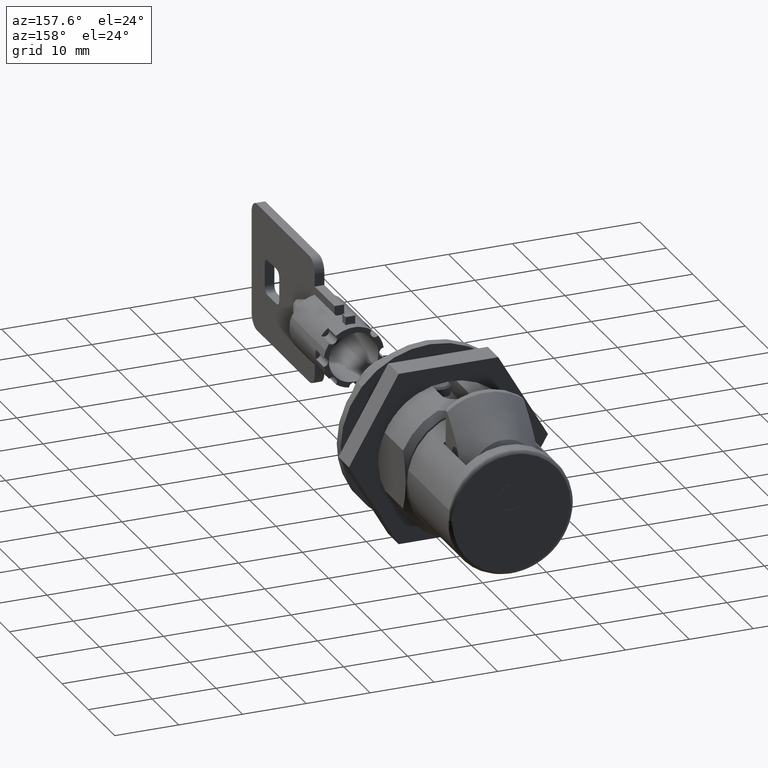
[diagram: clean part render]
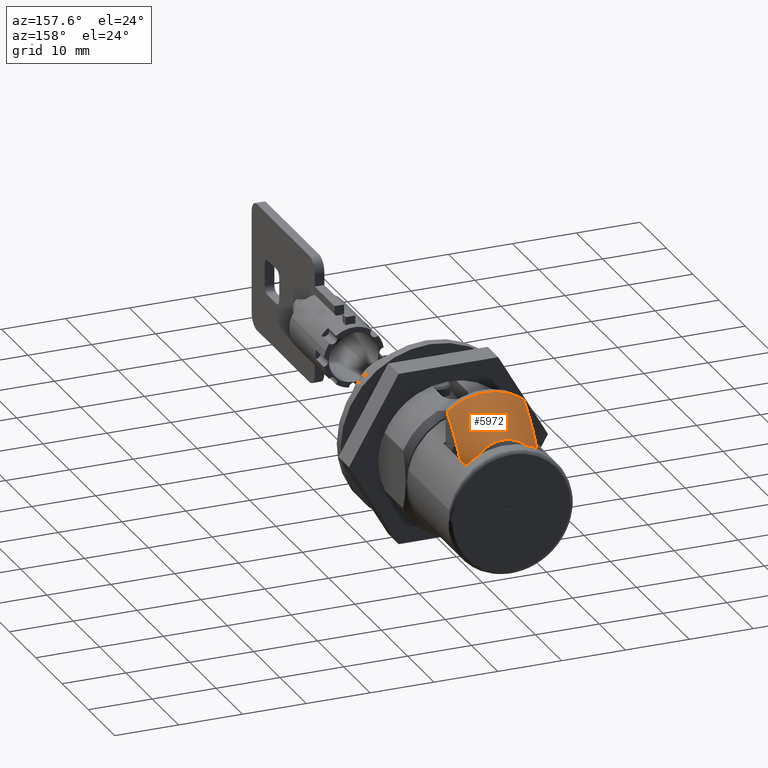
[diagram: same view with one face highlighted and labeled with its STEP entity id]
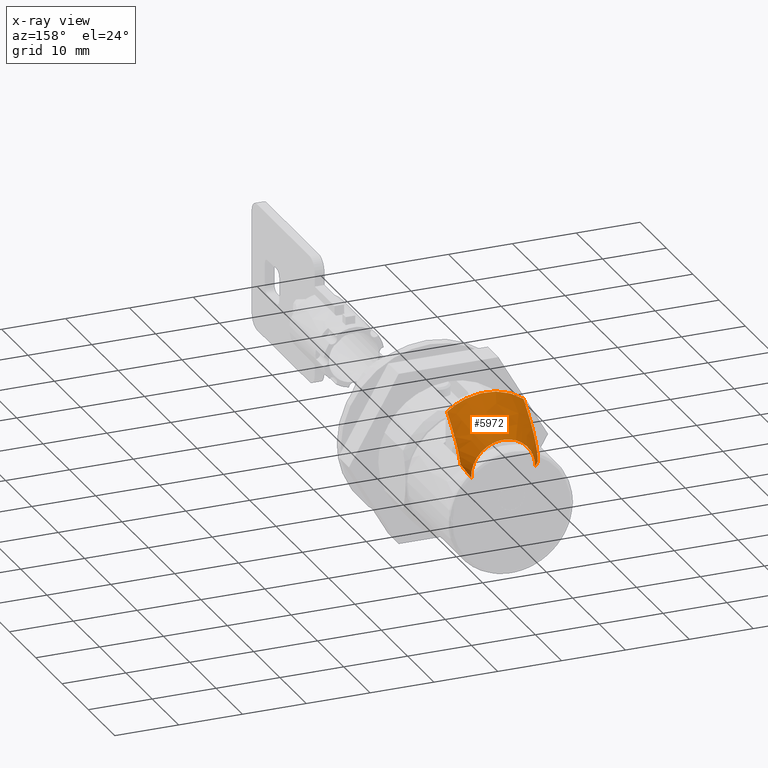
[diagram: x-ray of the same camera — body ghosted, the highlighted face saturated]
A machine part, auxiliary view. The second image highlights one B-rep face of the part: STEP entity #5972.
The next image is the same camera in x-ray: the body ghosted, the highlighted face saturated — about 0% of this face is hidden behind the body in this view.
In plain terms, the highlighted face is a freeform B-spline surface patch.
Its self-contained STEP definition (entity closure, byte-faithful):
#4879=CARTESIAN_POINT('',(25.300000000000001,6.000480898583165,2.181160377379437));
#4880=VERTEX_POINT('',#4879);
#5105=CARTESIAN_POINT('',(25.300000000000001,-6.000480898583126,2.177399804188660));
#5106=VERTEX_POINT('',#5105);
#5373=CARTESIAN_POINT('',(27.773523902498230,5.007127503225570,5.190888317715695));
#5374=VERTEX_POINT('',#5373);
#5421=CARTESIAN_POINT('',(27.773523902498230,-5.007127503225490,5.098301768484705));
#5422=VERTEX_POINT('',#5421);
#5460=CARTESIAN_POINT('',(27.773523902498230,-0.047265493933687,10.256868599436110));
#5461=VERTEX_POINT('',#5460);
#5462=CARTESIAN_POINT('',(27.773523902498230,-0.047265493933687,10.256868599436110));
#5463=CARTESIAN_POINT('',(27.773523902498230,0.492467278929616,10.262163012733270));
#5464=CARTESIAN_POINT('',(27.773523902498230,1.365390797100017,10.127578265603560));
#5465=CARTESIAN_POINT('',(27.773523902498230,2.435149820044926,9.658005076790932));
#5466=CARTESIAN_POINT('',(27.773523902498219,3.363913046777682,9.022760826718910));
#5467=CARTESIAN_POINT('',(27.773523902498219,4.264540634477991,8.025924235529885));
#5468=CARTESIAN_POINT('',(27.773523902498219,4.886785046772579,6.645459875546125));
#5469=CARTESIAN_POINT('',(27.773523902498230,5.012524238329910,5.647550478584230));
#5470=CARTESIAN_POINT('',(27.773523902498230,5.007127503225570,5.190888317715695));
#5471=B_SPLINE_CURVE_WITH_KNOTS('',3,(#5462,#5463,#5464,#5465,#5466,#5467,#5468,#5469,#5470),.UNSPECIFIED.,.F.,.U.,(4,1,1,1,1,1,4),(0.000000460048009,1.619187593599230,2.615649680436144,3.487602412177723,4.982125041826437,6.601396620165167,7.971494339598017),.UNSPECIFIED.);
#5472=EDGE_CURVE('',#5461,#5374,#5471,.T.);
#5474=CARTESIAN_POINT('',(27.773523902498230,-5.007127503225490,5.098301768484705));
#5475=CARTESIAN_POINT('',(27.773523902498251,-5.023634703095767,5.637807811670943));
#5476=CARTESIAN_POINT('',(27.773523902498201,-4.907202655249370,6.513327934912175));
#5477=CARTESIAN_POINT('',(27.773523902498280,-4.380286240516111,7.785439008710307));
#5478=CARTESIAN_POINT('',(27.773523902498191,-3.702172615218290,8.693578453921408));
#5479=CARTESIAN_POINT('',(27.773523902498258,-2.740327367769319,9.492426485416260));
#5480=CARTESIAN_POINT('',(27.773523902498209,-1.581675280607286,10.080047474910600));
#5481=CARTESIAN_POINT('',(27.773523902498201,-0.586996419601160,10.252158184910151));
#5482=CARTESIAN_POINT('',(27.773523902498230,-0.047265493933687,10.256868599436110));
#5483=B_SPLINE_CURVE_WITH_KNOTS('',3,(#5474,#5475,#5476,#5477,#5478,#5479,#5480,#5481,#5482),.UNSPECIFIED.,.F.,.U.,(4,1,1,1,1,1,4),(0.000000459925213,1.619187609810829,2.615649706497655,4.110241601733870,4.982125091844132,6.352307269785422,7.971494419672093),.UNSPECIFIED.);
#5484=EDGE_CURVE('',#5422,#5461,#5483,.T.);
#5582=CARTESIAN_POINT('',(26.355555025280601,-5.999999999999920,5.094271665714160));
#5583=VERTEX_POINT('',#5582);
#5584=CARTESIAN_POINT('',(27.773523902498230,-5.007127503225490,5.098301768484705));
#5585=CARTESIAN_POINT('',(26.355555025280601,-5.999999999999920,5.094271665714160));
#5586=QUASI_UNIFORM_CURVE('',1,(#5584,#5585),.UNSPECIFIED.,.F.,.U.);
#5587=EDGE_CURVE('',#5422,#5583,#5586,.T.);
#5626=CARTESIAN_POINT('',(26.355555025280601,-5.999999999999920,5.094271665714160));
#5627=CARTESIAN_POINT('',(26.348246871673979,-6.000029275688912,4.896102090904257));
#5628=CARTESIAN_POINT('',(26.326946704769480,-6.000059088634249,4.699308150149262));
#5629=CARTESIAN_POINT('',(26.275282439914928,-6.000104565018334,4.406055435409590));
#5630=CARTESIAN_POINT('',(26.254780271486720,-6.000119849785038,4.308627079291976));
#5631=CARTESIAN_POINT('',(26.207476116178320,-6.000150661214835,4.114389737880506));
#5632=CARTESIAN_POINT('',(26.180585604070391,-6.000166226821057,4.017345646411983));
#5633=CARTESIAN_POINT('',(26.092129506678180,-6.000212666676839,3.730791633188056));
#5634=CARTESIAN_POINT('',(26.022609984221521,-6.000243455681586,3.544743356873210));
#5635=CARTESIAN_POINT('',(25.866561479309361,-6.000304758123818,3.180689302912199));
#5636=CARTESIAN_POINT('',(25.780025227494729,-6.000335271443530,3.002686962401079));
#5637=CARTESIAN_POINT('',(25.593129091306579,-6.000396074128713,2.653218441048735));
#5638=CARTESIAN_POINT('',(25.492763275369899,-6.000426363398094,2.481755064799117));
#5639=CARTESIAN_POINT('',(25.358229051178640,-6.000464679653232,2.267590215418237));
#5640=CARTESIAN_POINT('',(25.329289519652392,-6.000472797659609,2.222373126018161));
#5641=CARTESIAN_POINT('',(25.300000000000001,-6.000480898583126,2.177399804188660));
#5642=B_SPLINE_CURVE_WITH_KNOTS('',3,(#5626,#5627,#5628,#5629,#5630,#5631,#5632,#5633,#5634,#5635,#5636,#5637,#5638,#5639,#5640,#5641),.UNSPECIFIED.,.F.,.U.,(4,2,2,2,2,2,2,4),(0.0,0.062500000000000,0.093750000000000,0.125000000000000,0.187499999999999,0.249999999999998,0.312499999999998,0.329303359131450),.UNSPECIFIED.);
#5643=EDGE_CURVE('',#5583,#5106,#5642,.T.);
#5656=CARTESIAN_POINT('',(26.355555025280601,6.0,5.221393301013930));
#5657=VERTEX_POINT('',#5656);
#5658=CARTESIAN_POINT('',(25.300000000000001,6.000480898583165,2.181160377379437));
#5659=CARTESIAN_POINT('',(25.349147846869450,6.000467824200841,2.256719787420463));
#5660=CARTESIAN_POINT('',(25.397358227428050,6.000454686380714,2.333053892403563));
#5661=CARTESIAN_POINT('',(25.548743814191901,6.000412300484989,2.580768059818612));
#5662=CARTESIAN_POINT('',(25.647094073151969,6.000382990452373,2.754261369679019));
#5663=CARTESIAN_POINT('',(25.828989409270068,6.000324212009294,3.107507613710411));
#5664=CARTESIAN_POINT('',(25.912539038693069,6.000294743647531,3.287258623185783));
#5665=CARTESIAN_POINT('',(26.061591100504319,6.000235613864837,3.654390989052065));
#5666=CARTESIAN_POINT('',(26.127098263006140,6.000205952494508,3.841770345553037));
#5667=CARTESIAN_POINT('',(26.208801808690779,6.000161283319044,4.129839756316640));
#5668=CARTESIAN_POINT('',(26.233270176687650,6.000146364003140,4.227032419062478));
#5669=CARTESIAN_POINT('',(26.276085202385630,6.000116459884580,4.424006000956688));
#5670=CARTESIAN_POINT('',(26.294413026846161,6.000101459282140,4.523905376333588));
#5671=CARTESIAN_POINT('',(26.338664202673659,6.000057133847742,4.822536634782549));
#5672=CARTESIAN_POINT('',(26.354236186952299,6.000028234085893,5.021849608651071));
#5673=CARTESIAN_POINT('',(26.355555025280601,6.0,5.221393301013930));
#5674=B_SPLINE_CURVE_WITH_KNOTS('',3,(#5658,#5659,#5660,#5661,#5662,#5663,#5664,#5665,#5666,#5667,#5668,#5669,#5670,#5671,#5672,#5673),.UNSPECIFIED.,.F.,.U.,(4,2,2,2,2,2,2,4),(0.659415659930157,0.687500000000000,0.750000000000000,0.812500000000000,0.875000000000000,0.906250000000000,0.937500000000000,1.0),.UNSPECIFIED.);
#5675=EDGE_CURVE('',#4880,#5657,#5674,.T.);
#5712=CARTESIAN_POINT('',(26.355555025280601,6.0,5.221393301013930));
#5713=CARTESIAN_POINT('',(26.810000450228554,5.681793887746570,5.202974700395282));
#5714=CARTESIAN_POINT('',(27.773523902498230,5.007127503225570,5.190888317715695));
#5722=(BOUNDED_CURVE()B_SPLINE_CURVE(2,(#5712,#5713,#5714),.UNSPECIFIED.,.F.,.U.)CURVE()GEOMETRIC_REPRESENTATION_ITEM()QUASI_UNIFORM_CURVE()RATIONAL_B_SPLINE_CURVE((1.0,0.964696770100938,1.0))REPRESENTATION_ITEM(''));
#5723=EDGE_CURVE('',#5657,#5374,#5722,.T.);
#5740=CARTESIAN_POINT('',(21.000000000002551,6.000961797166331,12.932334897698800));
#5741=VERTEX_POINT('',#5740);
#5747=CARTESIAN_POINT('',(25.300000000000001,6.000480898583165,2.181160377379437));
#5748=CARTESIAN_POINT('',(25.351724862539282,6.000483169743796,2.260747884079770));
#5749=CARTESIAN_POINT('',(25.402405318353949,6.000485490092435,2.341193228937217));
#5750=CARTESIAN_POINT('',(25.504387315934672,6.000490381336877,2.508829785419037));
#5751=CARTESIAN_POINT('',(25.555532675648848,6.000492959384101,2.596143983254143));
#5752=CARTESIAN_POINT('',(25.654214812494260,6.000498219086868,2.772015849408477));
#5753=CARTESIAN_POINT('',(25.701834653640070,6.000500904591685,2.860706565831507));
#5754=CARTESIAN_POINT('',(25.838987081849361,6.000509145636935,3.129281359864136));
#5755=CARTESIAN_POINT('',(25.922837974334119,6.000514884886867,3.311656943680860));
#5756=CARTESIAN_POINT('',(26.071920135229028,6.000526965425770,3.684573088912701));
#5757=CARTESIAN_POINT('',(26.137157348347490,6.000533306522522,3.875111043486234));
#5758=CARTESIAN_POINT('',(26.244686997153408,6.000546730602733,4.266248573263950));
#5759=CARTESIAN_POINT('',(26.285973525987782,6.000553701044587,4.463527253557956));
#5760=CARTESIAN_POINT('',(26.341053307472521,6.000568156336339,4.860427670650506));
#5761=CARTESIAN_POINT('',(26.354897470431791,6.000575648641760,5.060263115271593));
#5762=CARTESIAN_POINT('',(26.353914654774741,6.000587307383984,5.362216061807172));
#5763=CARTESIAN_POINT('',(26.349958934371990,6.000591267966010,5.463343547005535));
#5764=CARTESIAN_POINT('',(26.334713900664759,6.000599313283415,5.665884808761609));
#5765=CARTESIAN_POINT('',(26.301098233970599,6.000611448845735,5.967150256553270));
#5766=CARTESIAN_POINT('',(26.237151808695121,6.000623775133677,6.261229737725369));
#5767=CARTESIAN_POINT('',(26.155543518405761,6.000636212482803,6.551124767918815));
#5768=CARTESIAN_POINT('',(26.125396795916249,6.000640376778025,6.647058961549572));
#5769=CARTESIAN_POINT('',(26.059629432788508,6.000648739789511,6.837630467528367));
#5770=CARTESIAN_POINT('',(26.023931257900362,6.000652946965296,6.932456147455440));
#5771=CARTESIAN_POINT('',(25.909768144541001,6.000665557018179,7.213808242783014));
#5772=CARTESIAN_POINT('',(25.824818243409499,6.000673894294759,7.396039509182040));
#5773=CARTESIAN_POINT('',(25.641025176442820,6.000690459750842,7.752115637390095));
#5774=CARTESIAN_POINT('',(25.542170385444280,6.000698687839057,7.925953481890710));
#5775=CARTESIAN_POINT('',(25.333355679615341,6.000715056812325,8.266925774428795));
#5776=CARTESIAN_POINT('',(25.223387971623190,6.000723197636184,8.434055518272631));
#5777=CARTESIAN_POINT('',(24.994453602486050,6.000739408619481,8.762882959307795));
#5778=CARTESIAN_POINT('',(24.875481628411489,6.000747478737197,8.924577449450389));
#5779=CARTESIAN_POINT('',(24.691486489218189,6.000759540432996,9.163776772591341));
#5780=CARTESIAN_POINT('',(24.629194639587720,6.000763555774541,9.242990366861880));
#5781=CARTESIAN_POINT('',(24.503389970581111,6.000771544213959,9.399833673007596));
#5782=CARTESIAN_POINT('',(24.439823448170550,6.000775520899818,9.477534951089023));
#5783=CARTESIAN_POINT('',(24.119008533357778,6.000795325599469,9.862806750348540));
#5784=CARTESIAN_POINT('',(23.852948510812261,6.000810920995588,10.160820220096440));
#5785=CARTESIAN_POINT('',(23.308133558411310,6.000841776655755,10.743078324531179));
#5786=CARTESIAN_POINT('',(23.029326071424439,6.000857035532351,11.027265956007490));
#5787=CARTESIAN_POINT('',(22.462607529364810,6.000887312961017,11.585767533049509));
#5788=CARTESIAN_POINT('',(22.174671779347779,6.000902330861163,11.860054694598141));
#5789=CARTESIAN_POINT('',(21.592029749165089,6.000932187926651,12.401285733446301));
#5790=CARTESIAN_POINT('',(21.297310673048571,6.000947026754193,12.668215732319441));
#5791=CARTESIAN_POINT('',(21.000000000002551,6.000961797166331,12.932334897698800));
#5792=B_SPLINE_CURVE_WITH_KNOTS('',3,(#5747,#5748,#5749,#5750,#5751,#5752,#5753,#5754,#5755,#5756,#5757,#5758,#5759,#5760,#5761,#5762,#5763,#5764,#5765,#5766,#5767,#5768,#5769,#5770,#5771,#5772,#5773,#5774,#5775,#5776,#5777,#5778,#5779,#5780,#5781,#5782,#5783,#5784,#5785,#5786,#5787,#5788,#5789,#5790,#5791),.UNSPECIFIED.,.F.,.U.,(4,2,2,2,2,2,2,2,2,1,2,2,2,2,2,2,2,2,2,2,2,2,4),(0.329001644430611,0.343750000000001,0.359375000000001,0.375000000000001,0.406250000000001,0.437500000000001,0.468750000000001,0.500000000000001,0.515625000000001,0.531250000000001,0.562500000000001,0.578125000000001,0.593750000000001,0.625000000000001,0.656250000000001,0.687500000000001,0.718750000000001,0.734375000000001,0.750000000000001,0.812500000000000,0.875000000000000,0.937500000000000,1.0),.UNSPECIFIED.);
#5793=EDGE_CURVE('',#4880,#5741,#5792,.T.);
#5812=CARTESIAN_POINT('',(21.0,-6.000961797166320,12.933837073921680));
#5813=VERTEX_POINT('',#5812);
#5814=CARTESIAN_POINT('',(21.0,-6.000961797166320,12.933837073921680));
#5815=CARTESIAN_POINT('',(21.297428382361900,-6.000947030380171,12.669665043810630));
#5816=CARTESIAN_POINT('',(21.592266227119939,-6.000932195199900,12.402683034360299));
#5817=CARTESIAN_POINT('',(22.175148243474780,-6.000902345476088,11.861349857338830));
#5818=CARTESIAN_POINT('',(22.463205213035540,-6.000887331270434,11.587012571833821));
#5819=CARTESIAN_POINT('',(23.030168976987909,-6.000857061280628,11.028412723870609));
#5820=CARTESIAN_POINT('',(23.309100472748518,-6.000841806148629,10.744176955208600));
#5821=CARTESIAN_POINT('',(23.854166450549670,-6.000810958024075,10.161824382494830));
#5822=CARTESIAN_POINT('',(24.120353510294692,-6.000795366419649,9.863764609949998));
#5823=CARTESIAN_POINT('',(24.441328953310759,-6.000775566475013,9.478435472370922));
#5824=CARTESIAN_POINT('',(24.504927665690321,-6.000771590740849,9.400722750224295));
#5825=CARTESIAN_POINT('',(24.630796866877329,-6.000763604205408,9.243856569927020));
#5826=CARTESIAN_POINT('',(24.693121774707912,-6.000759589774008,9.164630694987052));
#5827=CARTESIAN_POINT('',(24.877220012020398,-6.000747530518485,8.925388991115897));
#5828=CARTESIAN_POINT('',(24.996260628729289,-6.000739461994193,8.763665800456385));
#5829=CARTESIAN_POINT('',(25.225331273085160,-6.000723254109937,8.434779390146616));
#5830=CARTESIAN_POINT('',(25.335366622478400,-6.000715114791813,8.267619383433219));
#5831=CARTESIAN_POINT('',(25.544314247001662,-6.000698748712850,7.926583954838484));
#5832=CARTESIAN_POINT('',(25.643234330269259,-6.000690522013393,7.752713247021291));
#5833=CARTESIAN_POINT('',(25.827153385194030,-6.000673959175328,7.396567136618963));
#5834=CARTESIAN_POINT('',(25.912164007953059,-6.000665623128312,7.214298768238986));
#5835=CARTESIAN_POINT('',(26.026411979287840,-6.000653014753293,6.932885851218339));
#5836=CARTESIAN_POINT('',(26.062138937771440,-6.000648807913748,6.838034736199931));
#5837=CARTESIAN_POINT('',(26.127958889210781,-6.000640445650046,6.647413896940583));
#5838=CARTESIAN_POINT('',(26.158130098554199,-6.000636281701352,6.551454298190187));
#5839=CARTESIAN_POINT('',(26.239805377766540,-6.000623845307504,6.261480518020696));
#5840=CARTESIAN_POINT('',(26.303805885335230,-6.000611519806044,5.967317226539082));
#5841=CARTESIAN_POINT('',(26.337449168834400,-6.000599384767308,5.665958258858189));
#5842=CARTESIAN_POINT('',(26.352705866778638,-6.000591339739956,5.463352239435465));
#5843=CARTESIAN_POINT('',(26.356663685813789,-6.000587379536476,5.362198229323370));
#5844=CARTESIAN_POINT('',(26.357643611391062,-6.000575721572749,5.060156951323481));
#5845=CARTESIAN_POINT('',(26.343784356273300,-6.000568229757533,4.860262023073138));
#5846=CARTESIAN_POINT('',(26.302433027035200,-6.000557388987124,4.562496660713169));
#5847=CARTESIAN_POINT('',(26.285227763577989,-6.000553841447863,4.463587147209575));
#5848=CARTESIAN_POINT('',(26.244232370027991,-6.000546873488390,4.266433263117632));
#5849=CARTESIAN_POINT('',(26.220412321466089,-6.000543449334369,4.168080068015227));
#5850=CARTESIAN_POINT('',(26.139695414671920,-6.000533382800502,3.874661894382750));
#5851=CARTESIAN_POINT('',(26.074404372593719,-6.000527042696285,3.684082645262804));
#5852=CARTESIAN_POINT('',(25.925204346463580,-6.000514964044841,3.311086471858033));
#5853=CARTESIAN_POINT('',(25.841289407515781,-6.000509225690023,3.128672158269626));
#5854=CARTESIAN_POINT('',(25.704035714368619,-6.000500985894010,2.860040377032132));
#5855=CARTESIAN_POINT('',(25.656381243535201,-6.000498300790172,2.771330852669502));
#5856=CARTESIAN_POINT('',(25.557628416810442,-6.000493041856506,2.595421643677179));
#5857=CARTESIAN_POINT('',(25.506446737935100,-6.000490464174408,2.508088710458189));
#5858=CARTESIAN_POINT('',(25.403784319466862,-6.000485544394532,2.339414852787414));
#5859=CARTESIAN_POINT('',(25.352426721132701,-6.000483196323017,2.257968187849458));
#5860=CARTESIAN_POINT('',(25.300000000000001,-6.000480898583126,2.177399804188660));
#5861=B_SPLINE_CURVE_WITH_KNOTS('',3,(#5814,#5815,#5816,#5817,#5818,#5819,#5820,#5821,#5822,#5823,#5824,#5825,#5826,#5827,#5828,#5829,#5830,#5831,#5832,#5833,#5834,#5835,#5836,#5837,#5838,#5839,#5840,#5841,#5842,#5843,#5844,#5845,#5846,#5847,#5848,#5849,#5850,#5851,#5852,#5853,#5854,#5855,#5856,#5857,#5858,#5859,#5860),.UNSPECIFIED.,.F.,.U.,(4,2,2,2,2,2,2,2,2,2,2,2,2,1,2,2,2,2,2,2,2,2,2,4),(0.328817900610975,0.391317900610974,0.453817900610974,0.516317900610974,0.578817900610974,0.594442900610973,0.610067900610973,0.641317900610973,0.672567900610973,0.703817900610973,0.735067900610973,0.750692900610973,0.766317900610973,0.797567900610973,0.813192900610973,0.828817900610973,0.860067900610973,0.875692900610973,0.891317900610973,0.922567900610974,0.953817900610974,0.969442900610974,0.985067900610975,1.0),.UNSPECIFIED.);
#5862=EDGE_CURVE('',#5813,#5106,#5861,.T.);
#5924=CARTESIAN_POINT('',(21.000000000002551,6.000961797166331,12.932334897698800));
#5925=CARTESIAN_POINT('',(21.000000000002331,5.576470867612511,13.263948575577530));
#5926=CARTESIAN_POINT('',(21.000000000002021,4.502808175942661,13.967807231388210));
#5927=CARTESIAN_POINT('',(21.000000000001322,2.805825322477480,14.652417795545540));
#5928=CARTESIAN_POINT('',(21.000000000000899,0.747507983941962,15.040987573749931));
#5929=CARTESIAN_POINT('',(21.000000000000469,-1.152007636626439,15.001885716980381));
#5930=CARTESIAN_POINT('',(21.000000000000039,-3.587528343219741,14.437341245852661));
#5931=CARTESIAN_POINT('',(21.000000000000050,-5.099124631250136,13.639135539085050));
#5932=CARTESIAN_POINT('',(21.0,-6.000961797166320,12.933837073921680));
#5933=B_SPLINE_CURVE_WITH_KNOTS('',3,(#5924,#5925,#5926,#5927,#5928,#5929,#5930,#5931,#5932),.UNSPECIFIED.,.F.,.U.,(4,1,1,1,1,1,4),(0.000000124027256,1.616039215781642,3.838223228210431,5.454353762243149,7.878379885501727,9.494521250234824,12.928711408256291),.UNSPECIFIED.);
#5934=EDGE_CURVE('',#5741,#5813,#5933,.T.);
#5939=CARTESIAN_POINT('',(27.942862000060678,4.333555316157085,2.985238555621562));
#5940=CARTESIAN_POINT('',(20.826428449998481,8.749391026306117,0.679390405206810));
#5941=CARTESIAN_POINT('',(27.942862000060675,6.210430800014833,6.579566214895888));
#5942=CARTESIAN_POINT('',(20.826428449998474,12.538353501272233,7.935477844598930));
#5943=CARTESIAN_POINT('',(27.942862000060678,3.025610921467182,9.089302305670859));
#5944=CARTESIAN_POINT('',(20.826428449998481,6.108964277997694,13.002034444543970));
#5945=CARTESIAN_POINT('',(27.942862000060675,-0.159208957080471,11.599038396445827));
#5946=CARTESIAN_POINT('',(20.826428449998474,-0.320424945276848,18.068591044489015));
#5947=CARTESIAN_POINT('',(27.942862000060678,-3.215072421600331,8.933789554340578));
#5948=CARTESIAN_POINT('',(20.826428449998481,-6.489482027256007,12.688091413033931));
#5949=CARTESIAN_POINT('',(27.942862000060675,-6.270935886120190,6.268540712235327));
#5950=CARTESIAN_POINT('',(20.826428449998474,-12.658539109235162,7.307591781578855));
#5951=CARTESIAN_POINT('',(27.942862000060678,-4.217365633173461,2.772156562811381));
#5952=CARTESIAN_POINT('',(20.826428449998481,-8.512872177655400,0.249228851181223));
#5960=(BOUNDED_SURFACE()B_SPLINE_SURFACE(1,2,((#5939,#5941,#5943,#5945,#5947,#5949,#5951),(#5940,#5942,#5944,#5946,#5948,#5950,#5952)),.UNSPECIFIED.,.F.,.F.,.U.)B_SPLINE_SURFACE_WITH_KNOTS((2,2),(3,2,2,3),(0.0,8.686781175110230),(0.0,14.241793973493159,28.483587946986319,42.725381920479478),.UNSPECIFIED.)GEOMETRIC_REPRESENTATION_ITEM()RATIONAL_B_SPLINE_SURFACE(((1.0,0.769771044871368,1.0,0.769771044871368,1.0,0.769771044871368,1.0),(1.0,0.769771044871368,1.0,0.769771044871368,1.0,0.769771044871368,1.0)))REPRESENTATION_ITEM('')SURFACE());
#5961=ORIENTED_EDGE('',*,*,#5793,.T.);
#5962=ORIENTED_EDGE('',*,*,#5934,.T.);
#5963=ORIENTED_EDGE('',*,*,#5862,.T.);
#5964=ORIENTED_EDGE('',*,*,#5643,.F.);
#5965=ORIENTED_EDGE('',*,*,#5587,.F.);
#5966=ORIENTED_EDGE('',*,*,#5484,.T.);
#5967=ORIENTED_EDGE('',*,*,#5472,.T.);
#5968=ORIENTED_EDGE('',*,*,#5723,.F.);
#5969=ORIENTED_EDGE('',*,*,#5675,.F.);
#5970=EDGE_LOOP('',(#5961,#5962,#5963,#5964,#5965,#5966,#5967,#5968,#5969));
#5971=FACE_OUTER_BOUND('',#5970,.T.);
#5972=ADVANCED_FACE('',(#5971),#5960,.T.);